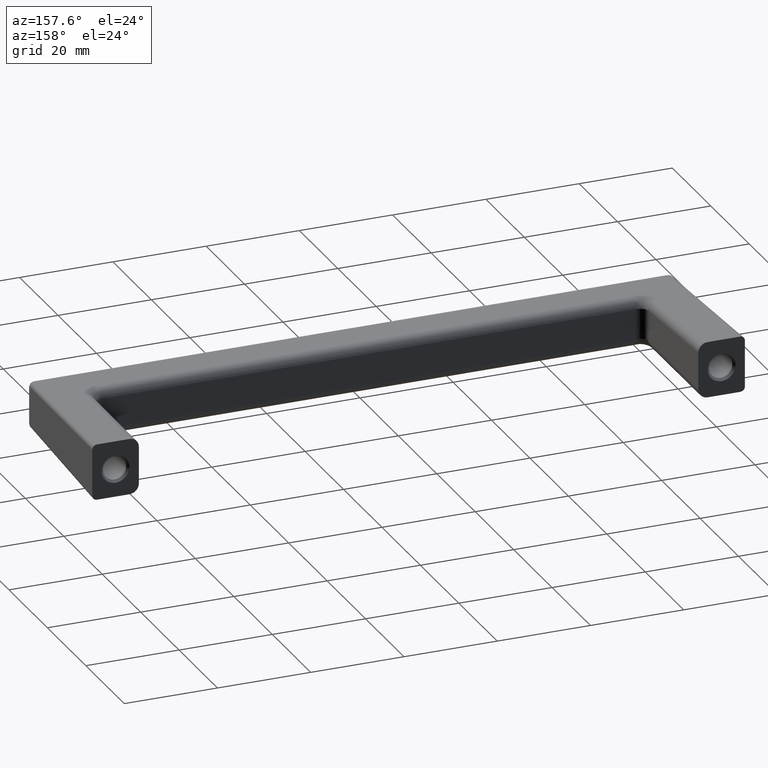
[diagram: clean part render]
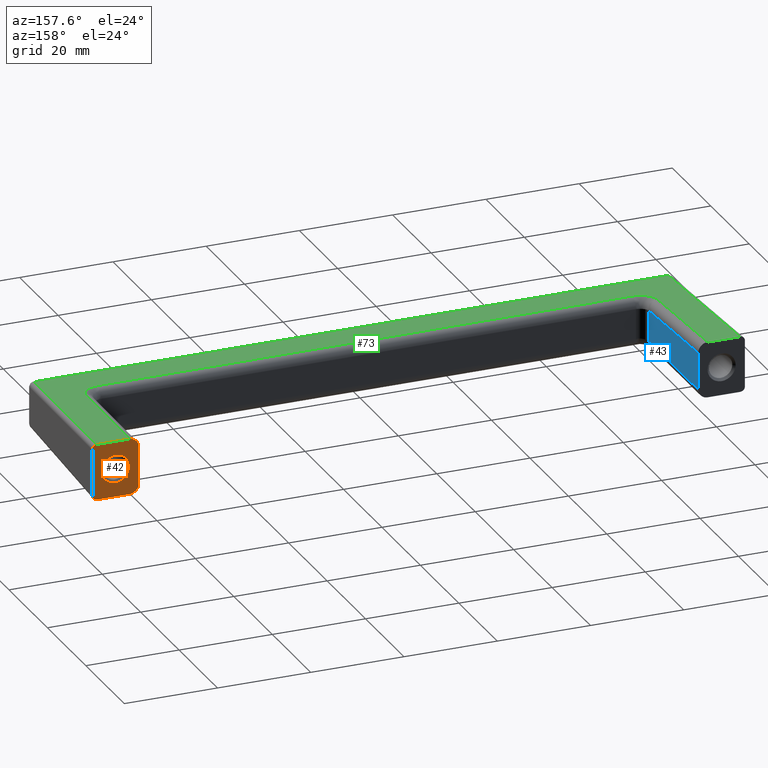
[diagram: same view with three faces highlighted in distinct colors, each labeled with its STEP entity id]
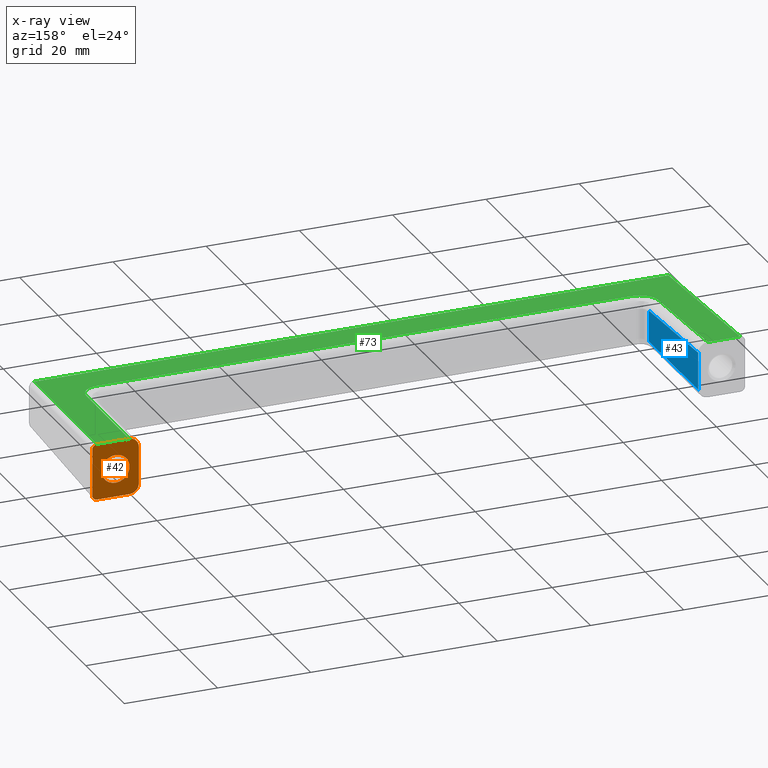
[diagram: x-ray of the same camera — body ghosted, the three highlighted faces saturated]
A machine part, auxiliary view with three faces highlighted in distinct colors.
The next image is the same camera in x-ray (body ghosted, the three faces saturated) — at least one of them is partly hidden behind the body in this view.
Their STEP definitions:

[orange] entity #42 — the highlighted planar face has unit normal (0, -1, 0).
#42=ADVANCED_FACE('',(#105,#106),#104,.F.);
#104=PLANE('',#539);
#105=FACE_OUTER_BOUND('',#540,.T.);
#106=FACE_BOUND('',#541,.T.);
#536=CARTESIAN_POINT('',(5.89995188436E+001,1.05517187119E+001,2.82947860724E+000));
#537=DIRECTION('',(0.00000000000E+000,-1.00000000000E+000,0.00000000000E+000));
#538=DIRECTION('',(1.00000000000E+000,0.00000000000E+000,0.00000000000E+000));
#539=AXIS2_PLACEMENT_3D('',#536,#537,#538);
#540=EDGE_LOOP('',(#989,#990,#991,#992,#993,#994,#995,#996));
#541=EDGE_LOOP('',(#997,#998,#999,#1000,#1001,#1002,#1003,#1004));
#989=ORIENTED_EDGE('',*,*,#1269,.T.);
#990=ORIENTED_EDGE('',*,*,#1270,.T.);
#991=ORIENTED_EDGE('',*,*,#1271,.T.);
#992=ORIENTED_EDGE('',*,*,#1272,.T.);
#993=ORIENTED_EDGE('',*,*,#1273,.F.);
#994=ORIENTED_EDGE('',*,*,#1274,.T.);
#995=ORIENTED_EDGE('',*,*,#1275,.F.);
#996=ORIENTED_EDGE('',*,*,#1276,.T.);
#997=ORIENTED_EDGE('',*,*,#1277,.T.);
#998=ORIENTED_EDGE('',*,*,#1278,.T.);
#999=ORIENTED_EDGE('',*,*,#1279,.T.);
#1000=ORIENTED_EDGE('',*,*,#1280,.T.);
#1001=ORIENTED_EDGE('',*,*,#1281,.T.);
#1002=ORIENTED_EDGE('',*,*,#1282,.T.);
#1003=ORIENTED_EDGE('',*,*,#1283,.T.);
#1004=ORIENTED_EDGE('',*,*,#1284,.T.);
#1269=EDGE_CURVE('',#1505,#1506,#1507,.T.);
#1270=EDGE_CURVE('',#1506,#1513,#1514,.T.);
#1271=EDGE_CURVE('',#1513,#1520,#1521,.T.);
#1272=EDGE_CURVE('',#1520,#1527,#1528,.T.);
#1273=EDGE_CURVE('',#1534,#1527,#1535,.T.);
#1274=EDGE_CURVE('',#1534,#1541,#1542,.T.);
#1275=EDGE_CURVE('',#1548,#1541,#1549,.T.);
#1276=EDGE_CURVE('',#1548,#1505,#1555,.T.);
#1277=EDGE_CURVE('',#1561,#1562,#1563,.T.);
#1278=EDGE_CURVE('',#1562,#1569,#1570,.T.);
#1279=EDGE_CURVE('',#1569,#1576,#1577,.T.);
#1280=EDGE_CURVE('',#1576,#1583,#1584,.T.);
#1281=EDGE_CURVE('',#1583,#1590,#1591,.T.);
#1282=EDGE_CURVE('',#1590,#1597,#1598,.T.);
#1283=EDGE_CURVE('',#1597,#1604,#1605,.T.);
#1284=EDGE_CURVE('',#1604,#1561,#1611,.T.);
#1505=VERTEX_POINT('',#2436);
#1506=VERTEX_POINT('',#2437);
#1507=LINE('',#2438,#2439);
#1513=VERTEX_POINT('',#2441);
#1514=(BOUNDED_CURVE() B_SPLINE_CURVE(3,(#2442,#2443,#2444,#2445,#2446,#2447,#2448),.UNSPECIFIED.,.F.,.F.) B_SPLINE_CURVE_WITH_KNOTS((4,1,1,1,4),(-6.09930217000E-007,3.92570674914E-001,7.85139384747E-001,1.17770814500E+000,1.57027759217E+000),.UNSPECIFIED.) CURVE() GEOMETRIC_REPRESENTATION_ITEM() RATIONAL_B_SPLINE_CURVE((1.00000000000E+000,1.00000000000E+000,1.00000000000E+000,1.00000000000E+000,1.00000000000E+000,1.00000000000E+000,1.00000000000E+000)) REPRESENTATION_ITEM('') );
#1520=VERTEX_POINT('',#2449);
#1521=LINE('',#2450,#2451);
#1527=VERTEX_POINT('',#2453);
#1528=(BOUNDED_CURVE() B_SPLINE_CURVE(3,(#2454,#2455,#2456,#2457,#2458,#2459,#2460,#2461,#2462),.UNSPECIFIED.,.F.,.F.) B_SPLINE_CURVE_WITH_KNOTS((4,1,1,1,1,1,4),(3.32221141000E-007,7.37148701921E-001,1.22859670985E+000,1.62168181965E+000,2.16229398401E+000,2.55546566565E+000,3.14517297972E+000),.UNSPECIFIED.) CURVE() GEOMETRIC_REPRESENTATION_ITEM() RATIONAL_B_SPLINE_CURVE((1.00000000000E+000,1.00000000000E+000,1.00000000000E+000,1.00000000000E+000,1.00000000000E+000,1.00000000000E+000,1.00000000000E+000,1.00000000000E+000,1.00000000000E+000)) REPRESENTATION_ITEM('') );
#1534=VERTEX_POINT('',#2463);
#1535=LINE('',#2464,#2465);
#1541=VERTEX_POINT('',#2467);
#1542=(BOUNDED_CURVE() B_SPLINE_CURVE(3,(#2468,#2469,#2470,#2471,#2472,#2473,#2474,#2475),.UNSPECIFIED.,.F.,.F.) B_SPLINE_CURVE_WITH_KNOTS((4,1,1,1,1,4),(3.32218970000E-007,5.40557804365E-001,1.22859670985E+000,1.62168181965E+000,2.30973354864E+000,3.14517297972E+000),.UNSPECIFIED.) CURVE() GEOMETRIC_REPRESENTATION_ITEM() RATIONAL_B_SPLINE_CURVE((1.00000000000E+000,1.00000000000E+000,1.00000000000E+000,1.00000000000E+000,1.00000000000E+000,1.00000000000E+000,1.00000000000E+000,1.00000000000E+000)) REPRESENTATION_ITEM('') );
#1548=VERTEX_POINT('',#2476);
#1549=LINE('',#2477,#2478);
#1555=(BOUNDED_CURVE() B_SPLINE_CURVE(3,(#2480,#2481,#2482,#2483,#2484,#2485,#2486),.UNSPECIFIED.,.F.,.F.) B_SPLINE_CURVE_WITH_KNOTS((4,1,1,1,4),(-6.09933209000E-007,3.92570674911E-001,7.85139384746E-001,1.17770814500E+000,1.57027759217E+000),.UNSPECIFIED.) CURVE() GEOMETRIC_REPRESENTATION_ITEM() RATIONAL_B_SPLINE_CURVE((1.00000000000E+000,1.00000000000E+000,1.00000000000E+000,1.00000000000E+000,1.00000000000E+000,1.00000000000E+000,1.00000000000E+000)) REPRESENTATION_ITEM('') );
#1561=VERTEX_POINT('',#2487);
#1562=VERTEX_POINT('',#2488);
#1563=(BOUNDED_CURVE() B_SPLINE_CURVE(3,(#2489,#2490,#2491,#2492,#2493,#2494,#2495),.UNSPECIFIED.,.F.,.F.) B_SPLINE_CURVE_WITH_KNOTS((4,1,1,1,4),(2.11232672000E-007,7.36316468783E-001,1.47267359182E+000,2.13539998469E+000,2.33007462109E+000),.UNSPECIFIED.) CURVE() GEOMETRIC_REPRESENTATION_ITEM() RATIONAL_B_SPLINE_CURVE((1.00000000000E+000,1.00000000000E+000,1.00000000000E+000,1.00000000000E+000,1.00000000000E+000,1.00000000000E+000,1.00000000000E+000)) REPRESENTATION_ITEM('') );
#1569=VERTEX_POINT('',#2496);
#1570=(BOUNDED_CURVE() B_SPLINE_CURVE(3,(#2497,#2498,#2499,#2500,#2501,#2502),.UNSPECIFIED.,.F.,.F.) B_SPLINE_CURVE_WITH_KNOTS((4,1,1,4),(2.33007462109E+000,3.16619763512E+000,3.90256142560E+000,4.71250592745E+000),.UNSPECIFIED.) CURVE() GEOMETRIC_REPRESENTATION_ITEM() RATIONAL_B_SPLINE_CURVE((1.00000000000E+000,1.00000000000E+000,1.00000000000E+000,1.00000000000E+000,1.00000000000E+000,1.00000000000E+000)) REPRESENTATION_ITEM('') );
#1576=VERTEX_POINT('',#2503);
#1577=(BOUNDED_CURVE() B_SPLINE_CURVE(3,(#2504,#2505,#2506,#2507,#2508,#2509),.UNSPECIFIED.,.F.,.F.) B_SPLINE_CURVE_WITH_KNOTS((4,1,1,4),(7.09329020000E-008,8.00964906271E-001,1.38345998376E+000,2.33007139115E+000),.UNSPECIFIED.) CURVE() GEOMETRIC_REPRESENTATION_ITEM() RATIONAL_B_SPLINE_CURVE((1.00000000000E+000,1.00000000000E+000,1.00000000000E+000,1.00000000000E+000,1.00000000000E+000,1.00000000000E+000)) REPRESENTATION_ITEM('') );
#1583=VERTEX_POINT('',#2510);
#1584=(BOUNDED_CURVE() B_SPLINE_CURVE(3,(#2511,#2512,#2513,#2514,#2515),.UNSPECIFIED.,.F.,.F.) B_SPLINE_CURVE_WITH_KNOTS((4,1,4),(5.54426040000E-008,1.11677860938E+000,2.38243751891E+000),.UNSPECIFIED.) CURVE() GEOMETRIC_REPRESENTATION_ITEM() RATIONAL_B_SPLINE_CURVE((1.00000000000E+000,1.00000000000E+000,1.00000000000E+000,1.00000000000E+000,1.00000000000E+000)) REPRESENTATION_ITEM('') );
#1590=VERTEX_POINT('',#2516);
#1591=(BOUNDED_CURVE() B_SPLINE_CURVE(3,(#2517,#2518,#2519,#2520,#2521,#2522,#2523),.UNSPECIFIED.,.F.,.F.) B_SPLINE_CURVE_WITH_KNOTS((4,1,1,1,4),(2.11220256000E-007,9.57219347595E-001,1.61994639478E+000,2.13539998468E+000,2.32717272593E+000),.UNSPECIFIED.) CURVE() GEOMETRIC_REPRESENTATION_ITEM() RATIONAL_B_SPLINE_CURVE((1.00000000000E+000,1.00000000000E+000,1.00000000000E+000,1.00000000000E+000,1.00000000000E+000,1.00000000000E+000,1.00000000000E+000)) REPRESENTATION_ITEM('') );
#1597=VERTEX_POINT('',#2524);
#1598=(BOUNDED_CURVE() B_SPLINE_CURVE(3,(#2525,#2526,#2527,#2528,#2529,#2530,#2531),.UNSPECIFIED.,.F.,.F.) B_SPLINE_CURVE_WITH_KNOTS((4,1,1,1,4),(2.32717272593E+000,2.72438323037E+000,3.31348062779E+000,4.04983560475E+000,4.71250592745E+000),.UNSPECIFIED.) CURVE() GEOMETRIC_REPRESENTATION_ITEM() RATIONAL_B_SPLINE_CURVE((1.00000000000E+000,1.00000000000E+000,1.00000000000E+000,1.00000000000E+000,1.00000000000E+000,1.00000000000E+000,1.00000000000E+000)) REPRESENTATION_ITEM('') );
#1604=VERTEX_POINT('',#2532);
#1605=(BOUNDED_CURVE() B_SPLINE_CURVE(3,(#2533,#2534,#2535,#2536,#2537,#2538),.UNSPECIFIED.,.F.,.F.) B_SPLINE_CURVE_WITH_KNOTS((4,1,1,4),(7.09337610000E-008,8.00964906271E-001,1.38345998376E+000,2.33007139115E+000),.UNSPECIFIED.) CURVE() GEOMETRIC_REPRESENTATION_ITEM() RATIONAL_B_SPLINE_CURVE((1.00000000000E+000,1.00000000000E+000,1.00000000000E+000,1.00000000000E+000,1.00000000000E+000,1.00000000000E+000)) REPRESENTATION_ITEM('') );
#1611=(BOUNDED_CURVE() B_SPLINE_CURVE(3,(#2539,#2540,#2541,#2542,#2543),.UNSPECIFIED.,.F.,.F.) B_SPLINE_CURVE_WITH_KNOTS((4,1,4),(5.54440920000E-008,1.11677860938E+000,2.38243751891E+000),.UNSPECIFIED.) CURVE() GEOMETRIC_REPRESENTATION_ITEM() RATIONAL_B_SPLINE_CURVE((1.00000000000E+000,1.00000000000E+000,1.00000000000E+000,1.00000000000E+000,1.00000000000E+000)) REPRESENTATION_ITEM('') );
#2436=CARTESIAN_POINT('',(6.99996000000E+001,1.05517187119E+001,1.50300827601E+001));
#2437=CARTESIAN_POINT('',(6.99996000000E+001,1.05517187119E+001,5.02931207635E+000));
#2438=CARTESIAN_POINT('',(6.99996000000E+001,1.05517187119E+001,1.50300827601E+001));
#2439=VECTOR('',#2440,1.00007706837E+001);
#2440=DIRECTION('',(0.00000000000E+000,0.00000000000E+000,-1.00000000000E+000));
#2441=CARTESIAN_POINT('',(6.89999855793E+001,1.05517187119E+001,4.02969741821E+000));
#2442=CARTESIAN_POINT('',(6.99996000000E+001,1.05517187119E+001,5.02931207635E+000));
#2443=CARTESIAN_POINT('',(6.99997129753E+001,1.05517187119E+001,4.89844355180E+000));
#2444=CARTESIAN_POINT('',(6.99474267659E+001,1.05517187119E+001,4.63688835954E+000));
#2445=CARTESIAN_POINT('',(6.97251968754E+001,1.05517187119E+001,4.30407159003E+000));
#2446=CARTESIAN_POINT('',(6.93924370851E+001,1.05517187119E+001,4.08183804006E+000));
#2447=CARTESIAN_POINT('',(6.91308446596E+001,1.05517187119E+001,4.02954265668E+000));
#2448=CARTESIAN_POINT('',(6.89999855793E+001,1.05517187119E+001,4.02969741821E+000));
#2449=CARTESIAN_POINT('',(6.20019173944E+001,1.05517187119E+001,4.02969741821E+000));
#2450=CARTESIAN_POINT('',(6.89999855793E+001,1.05517187119E+001,4.02969741821E+000));
#2451=VECTOR('',#2452,6.99806818486E+000);
#2452=DIRECTION('',(-1.00000000000E+000,0.00000000000E+000,0.00000000000E+000));
#2453=CARTESIAN_POINT('',(5.99996000000E+001,1.05517187119E+001,6.03201314921E+000));
#2454=CARTESIAN_POINT('',(6.20019173944E+001,1.05517187119E+001,4.02969741821E+000));
#2455=CARTESIAN_POINT('',(6.17561760695E+001,1.05517187119E+001,4.02952241134E+000));
#2456=CARTESIAN_POINT('',(6.13468257348E+001,1.05517187119E+001,4.10615473581E+000));
#2457=CARTESIAN_POINT('',(6.08665480796E+001,1.05517187119E+001,4.36298219584E+000));
#2458=CARTESIAN_POINT('',(6.05050815326E+001,1.05517187119E+001,4.67475023705E+000));
#2459=CARTESIAN_POINT('',(6.02436211592E+001,1.05517187119E+001,5.03644846981E+000));
#2460=CARTESIAN_POINT('',(6.00483334974E+001,1.05517187119E+001,5.50788559068E+000));
#2461=CARTESIAN_POINT('',(5.99995402580E+001,1.05517187119E+001,5.83543931523E+000));
#2462=CARTESIAN_POINT('',(5.99996000000E+001,1.05517187119E+001,6.03201314921E+000));
#2463=CARTESIAN_POINT('',(5.99996000000E+001,1.05517187119E+001,1.40273816872E+001));
#2464=CARTESIAN_POINT('',(5.99996000000E+001,1.05517187119E+001,1.40273816872E+001));
#2465=VECTOR('',#2466,7.99536853801E+000);
#2466=DIRECTION('',(0.00000000000E+000,0.00000000000E+000,-1.00000000000E+000));
#2467=CARTESIAN_POINT('',(6.20019173944E+001,1.05517187119E+001,1.60296974182E+001));
#2468=CARTESIAN_POINT('',(5.99996000000E+001,1.05517187119E+001,1.40273816872E+001));
#2469=CARTESIAN_POINT('',(5.99995905549E+001,1.05517187119E+001,1.42075571155E+001));
#2470=CARTESIAN_POINT('',(6.00552424768E+001,1.05517187119E+001,1.46171087042E+001));
#2471=CARTESIAN_POINT('',(6.02897727507E+001,1.05517187119E+001,1.51129154749E+001));
#2472=CARTESIAN_POINT('',(6.06768782854E+001,1.05517187119E+001,1.55616644060E+001));
#2473=CARTESIAN_POINT('',(6.12158160931E+001,1.05517187119E+001,1.59219508960E+001));
#2474=CARTESIAN_POINT('',(6.17234201825E+001,1.05517187119E+001,1.60299604524E+001));
#2475=CARTESIAN_POINT('',(6.20019173944E+001,1.05517187119E+001,1.60296974182E+001));
#2476=CARTESIAN_POINT('',(6.89999855793E+001,1.05517187119E+001,1.60296974182E+001));
#2477=CARTESIAN_POINT('',(6.89999855793E+001,1.05517187119E+001,1.60296974182E+001));
#2478=VECTOR('',#2479,6.99806818486E+000);
#2479=DIRECTION('',(-1.00000000000E+000,0.00000000000E+000,0.00000000000E+000));
#2480=CARTESIAN_POINT('',(6.89999855793E+001,1.05517187119E+001,1.60296974182E+001));
#2481=CARTESIAN_POINT('',(6.91308495532E+001,1.05517187119E+001,1.60298087602E+001));
#2482=CARTESIAN_POINT('',(6.93924125854E+001,1.05517187119E+001,1.59775239801E+001));
#2483=CARTESIAN_POINT('',(6.97252247403E+001,1.05517187119E+001,1.57552941622E+001));
#2484=CARTESIAN_POINT('',(6.99474596819E+001,1.05517187119E+001,1.54225337767E+001));
#2485=CARTESIAN_POINT('',(6.99997544017E+001,1.05517187119E+001,1.51609431333E+001));
#2486=CARTESIAN_POINT('',(6.99996000000E+001,1.05517187119E+001,1.50300827601E+001));
#2487=CARTESIAN_POINT('',(6.49999976837E+001,1.05517187119E+001,1.30296974182E+001));
#2488=CARTESIAN_POINT('',(6.28972859825E+001,1.05517187119E+001,1.21694347546E+001));
#2489=CARTESIAN_POINT('',(6.49999976837E+001,1.05517187119E+001,1.30296974182E+001));
#2490=CARTESIAN_POINT('',(6.47545608494E+001,1.05517187119E+001,1.30297509013E+001));
#2491=CARTESIAN_POINT('',(6.42637102029E+001,1.05517187119E+001,1.29691345916E+001));
#2492=CARTESIAN_POINT('',(6.35946139051E+001,1.05517187119E+001,1.27110441548E+001));
#2493=CARTESIAN_POINT('',(6.31537773479E+001,1.05517187119E+001,1.24087344284E+001));
#2494=CARTESIAN_POINT('',(6.29435449394E+001,1.05517187119E+001,1.22149376625E+001));
#2495=CARTESIAN_POINT('',(6.28972859825E+001,1.05517187119E+001,1.21694347546E+001));
#2496=CARTESIAN_POINT('',(6.20000000000E+001,1.05517187119E+001,1.00296974182E+001));
#2497=CARTESIAN_POINT('',(6.28972859825E+001,1.05517187119E+001,1.21694347546E+001));
#2498=CARTESIAN_POINT('',(6.26986048437E+001,1.05517187119E+001,1.19740008283E+001));
#2499=CARTESIAN_POINT('',(6.23761101672E+001,1.05517187119E+001,1.15543781045E+001));
#2500=CARTESIAN_POINT('',(6.20700619705E+001,1.05517187119E+001,1.08150442507E+001));
#2501=CARTESIAN_POINT('',(6.19999090412E+001,1.05517187119E+001,1.02996807568E+001));
#2502=CARTESIAN_POINT('',(6.20000000000E+001,1.05517187119E+001,1.00296974182E+001));
#2503=CARTESIAN_POINT('',(6.28602492720E+001,1.05517184224E+001,7.92697023405E+000));
#2504=CARTESIAN_POINT('',(6.20000000000E+001,1.05517187119E+001,1.00296974182E+001));
#2505=CARTESIAN_POINT('',(6.19999053520E+001,1.05517186751E+001,9.76270541809E+000));
#2506=CARTESIAN_POINT('',(6.20619973549E+001,1.05517186116E+001,9.30161904147E+000));
#2507=CARTESIAN_POINT('',(6.23398052949E+001,1.05517185112E+001,8.57238701631E+000));
#2508=CARTESIAN_POINT('',(6.26389677928E+001,1.05517184533E+001,8.15192983474E+000));
#2509=CARTESIAN_POINT('',(6.28602492720E+001,1.05517184224E+001,7.92697023405E+000));
#2510=CARTESIAN_POINT('',(6.50000023163E+001,1.05517187119E+001,7.02969741821E+000));
#2511=CARTESIAN_POINT('',(6.28602492720E+001,1.05517184224E+001,7.92697023405E+000));
#2512=CARTESIAN_POINT('',(6.31209534537E+001,1.05517184576E+001,7.66118862177E+000));
#2513=CARTESIAN_POINT('',(6.37844706694E+001,1.05517185474E+001,7.20025462518E+000));
#2514=CARTESIAN_POINT('',(6.45780269593E+001,1.05517186548E+001,7.02910780989E+000));
#2515=CARTESIAN_POINT('',(6.50000023163E+001,1.05517187119E+001,7.02969741821E+000));
#2516=CARTESIAN_POINT('',(6.71006531564E+001,1.05517187119E+001,7.88791979718E+000));
#2517=CARTESIAN_POINT('',(6.50000023163E+001,1.05517187119E+001,7.02969741821E+000));
#2518=CARTESIAN_POINT('',(6.53190908096E+001,1.05517187119E+001,7.02950892746E+000));
#2519=CARTESIAN_POINT('',(6.58589407004E+001,1.05517187119E+001,7.11669479987E+000));
#2520=CARTESIAN_POINT('',(6.65100133643E+001,1.05517187119E+001,7.41495229370E+000));
#2521=CARTESIAN_POINT('',(6.68814615702E+001,1.05517187119E+001,7.68345118745E+000));
#2522=CARTESIAN_POINT('',(6.70550192862E+001,1.05517187119E+001,7.84315705333E+000));
#2523=CARTESIAN_POINT('',(6.71006531564E+001,1.05517187119E+001,7.88791979718E+000));
#2524=CARTESIAN_POINT('',(6.80000000000E+001,1.05517187119E+001,1.00296974182E+001));
#2525=CARTESIAN_POINT('',(6.71006531564E+001,1.05517187119E+001,7.88791979718E+000));
#2526=CARTESIAN_POINT('',(6.71951725989E+001,1.05517187119E+001,7.98063491377E+000));
#2527=CARTESIAN_POINT('',(6.74146567766E+001,1.05517187119E+001,8.22637145472E+000));
#2528=CARTESIAN_POINT('',(6.77233834903E+001,1.05517187119E+001,8.71381997494E+000));
#2529=CARTESIAN_POINT('',(6.79482849056E+001,1.05517187119E+001,9.34248834079E+000));
#2530=CARTESIAN_POINT('',(6.80000353346E+001,1.05517187119E+001,9.80881222606E+000));
#2531=CARTESIAN_POINT('',(6.80000000000E+001,1.05517187119E+001,1.00296974182E+001));
#2532=CARTESIAN_POINT('',(6.71397507280E+001,1.05517184224E+001,1.21324246024E+001));
#2533=CARTESIAN_POINT('',(6.80000000000E+001,1.05517187119E+001,1.00296974182E+001));
#2534=CARTESIAN_POINT('',(6.80000776687E+001,1.05517186751E+001,1.02966862595E+001));
#2535=CARTESIAN_POINT('',(6.79380245953E+001,1.05517186116E+001,1.07577824224E+001));
#2536=CARTESIAN_POINT('',(6.76601637265E+001,1.05517185112E+001,1.14869905265E+001));
#2537=CARTESIAN_POINT('',(6.73610580720E+001,1.05517184533E+001,1.19074830404E+001));
#2538=CARTESIAN_POINT('',(6.71397507280E+001,1.05517184224E+001,1.21324246024E+001));
#2539=CARTESIAN_POINT('',(6.71397507280E+001,1.05517184224E+001,1.21324246024E+001));
#2540=CARTESIAN_POINT('',(6.68790455447E+001,1.05517184576E+001,1.23982093644E+001));
#2541=CARTESIAN_POINT('',(6.62155301176E+001,1.05517185474E+001,1.28591347904E+001));
#2542=CARTESIAN_POINT('',(6.54219731587E+001,1.05517186548E+001,1.30302904308E+001));
#2543=CARTESIAN_POINT('',(6.49999976837E+001,1.05517187119E+001,1.30296974182E+001));

[blue] entity #43 — the highlighted planar face has unit normal (-0.9996, -0.0278, 0).
#43=ADVANCED_FACE('',(#116),#115,.F.);
#115=PLANE('',#545);
#116=FACE_OUTER_BOUND('',#546,.T.);
#542=CARTESIAN_POINT('',(-6.00668188674E+001,1.29572719546E+001,5.23247424650E+000));
#543=DIRECTION('',(-9.99614444367E-001,-2.77662135278E-002,0.00000000000E+000));
#544=DIRECTION('',(2.77662135278E-002,-9.99614444367E-001,0.00000000000E+000));
#545=AXIS2_PLACEMENT_3D('',#542,#543,#544);
#546=EDGE_LOOP('',(#1005,#1006,#1007,#1008));
#1005=ORIENTED_EDGE('',*,*,#1285,.F.);
#1006=ORIENTED_EDGE('',*,*,#1286,.T.);
#1007=ORIENTED_EDGE('',*,*,#1287,.T.);
#1008=ORIENTED_EDGE('',*,*,#1288,.T.);
#1285=EDGE_CURVE('',#1617,#1618,#1619,.T.);
#1286=EDGE_CURVE('',#1617,#1625,#1626,.T.);
#1287=EDGE_CURVE('',#1625,#1632,#1633,.T.);
#1288=EDGE_CURVE('',#1632,#1618,#1639,.T.);
#1617=VERTEX_POINT('',#2544);
#1618=VERTEX_POINT('',#2545);
#1619=LINE('',#2546,#2547);
#1625=VERTEX_POINT('',#2549);
#1626=LINE('',#2550,#2551);
#1632=VERTEX_POINT('',#2553);
#1633=LINE('',#2554,#2555);
#1639=LINE('',#2557,#2558);
#2544=CARTESIAN_POINT('',(-6.00000000000E+001,1.05517187119E+001,1.40273833946E+001));
#2545=CARTESIAN_POINT('',(-6.00000000000E+001,1.05517187119E+001,6.03201144178E+000));
#2546=CARTESIAN_POINT('',(-6.00000000000E+001,1.05517187119E+001,1.40273833946E+001));
#2547=VECTOR('',#2548,7.99537195286E+000);
#2548=DIRECTION('',(0.00000000000E+000,0.00000000000E+000,-1.00000000000E+000));
#2549=CARTESIAN_POINT('',(-5.93318113262E+001,-1.35038137152E+001,1.33591741606E+001));
#2550=CARTESIAN_POINT('',(-6.00000000000E+001,1.05517187119E+001,1.40273833946E+001));
#2551=VECTOR('',#2552,2.40740860685E+001);
#2552=DIRECTION('',(2.77555156985E-002,-9.99229310663E-001,-2.77563697406E-002));
#2553=CARTESIAN_POINT('',(-5.93318113262E+001,-1.35038137152E+001,6.70022067587E+000));
#2554=CARTESIAN_POINT('',(-5.93318113262E+001,-1.35038137152E+001,1.33591741606E+001));
#2555=VECTOR('',#2556,6.65895348469E+000);
#2556=DIRECTION('',(0.00000000000E+000,0.00000000000E+000,-1.00000000000E+000));
#2557=CARTESIAN_POINT('',(-5.93318113262E+001,-1.35038137152E+001,6.70022067587E+000));
#2558=VECTOR('',#2559,2.40740860685E+001);
#2559=DIRECTION('',(-2.77555156985E-002,9.99229310663E-001,-2.77563697406E-002));

[green] entity #73 — the highlighted planar face has unit normal (0, 0.0278, -0.9996).
#73=ADVANCED_FACE('',(#416),#415,.F.);
#415=PLANE('',#896);
#416=FACE_OUTER_BOUND('',#897,.T.);
#893=CARTESIAN_POINT('',(-7.90003855793E+001,-2.79788250621E+001,1.49594045356E+001));
#894=DIRECTION('',(0.00000000000E+000,2.77670672404E-002,-9.99614420653E-001));
#895=DIRECTION('',(0.00000000000E+000,9.99614420653E-001,2.77670672404E-002));
#896=AXIS2_PLACEMENT_3D('',#893,#894,#895);
#897=EDGE_LOOP('',(#1127,#1128,#1129,#1130,#1131,#1132,#1133,#1134,#1135,#1136));
#1127=ORIENTED_EDGE('',*,*,#1316,.T.);
#1128=ORIENTED_EDGE('',*,*,#1314,.T.);
#1129=ORIENTED_EDGE('',*,*,#1275,.T.);
#1130=ORIENTED_EDGE('',*,*,#1327,.T.);
#1131=ORIENTED_EDGE('',*,*,#1329,.F.);
#1132=ORIENTED_EDGE('',*,*,#1333,.T.);
#1133=ORIENTED_EDGE('',*,*,#1338,.F.);
#1134=ORIENTED_EDGE('',*,*,#1345,.T.);
#1135=ORIENTED_EDGE('',*,*,#1351,.T.);
#1136=ORIENTED_EDGE('',*,*,#1323,.T.);
#1275=EDGE_CURVE('',#1548,#1541,#1549,.T.);
#1314=EDGE_CURVE('',#1785,#1548,#1811,.T.);
#1316=EDGE_CURVE('',#1817,#1785,#1824,.T.);
#1323=EDGE_CURVE('',#1869,#1817,#1870,.T.);
#1327=EDGE_CURVE('',#1541,#1889,#1896,.T.);
#1329=EDGE_CURVE('',#1902,#1889,#1909,.T.);
#1333=EDGE_CURVE('',#1902,#1927,#1934,.T.);
#1338=EDGE_CURVE('',#1960,#1927,#1967,.T.);
#1345=EDGE_CURVE('',#1960,#2004,#2011,.T.);
#1351=EDGE_CURVE('',#2004,#1869,#2049,.T.);
#1541=VERTEX_POINT('',#2467);
#1548=VERTEX_POINT('',#2476);
#1549=LINE('',#2477,#2478);
#1785=VERTEX_POINT('',#2657);
#1811=LINE('',#2687,#2688);
#1817=VERTEX_POINT('',#2690);
#1824=LINE('',#2698,#2699);
#1869=VERTEX_POINT('',#2734);
#1870=LINE('',#2735,#2736);
#1889=VERTEX_POINT('',#2749);
#1896=LINE('',#2758,#2759);
#1902=VERTEX_POINT('',#2761);
#1909=(BOUNDED_CURVE() B_SPLINE_CURVE(3,(#2770,#2771,#2772,#2773,#2774,#2775,#2776,#2777,#2778,#2779),.UNSPECIFIED.,.F.,.F.) B_SPLINE_CURVE_WITH_KNOTS((4,1,1,1,1,1,1,4),(1.00654335000E-007,7.71630739300E-001,1.63978489034E+000,2.60439396371E+000,3.56890727002E+000,4.14766874122E+000,5.11228475295E+000,6.17330229722E+000),.UNSPECIFIED.) CURVE() GEOMETRIC_REPRESENTATION_ITEM() RATIONAL_B_SPLINE_CURVE((1.00000000000E+000,1.00000000000E+000,1.00000000000E+000,1.00000000000E+000,1.00000000000E+000,1.00000000000E+000,1.00000000000E+000,1.00000000000E+000,1.00000000000E+000,1.00000000000E+000)) REPRESENTATION_ITEM('') );
#1927=VERTEX_POINT('',#2796);
#1934=LINE('',#2805,#2806);
#1960=VERTEX_POINT('',#2835);
#1967=(BOUNDED_CURVE() B_SPLINE_CURVE(3,(#2844,#2845,#2846,#2847,#2848,#2849,#2850,#2851,#2852,#2853),.UNSPECIFIED.,.F.,.F.) B_SPLINE_CURVE_WITH_KNOTS((4,1,1,1,1,1,1,4),(1.00663737000E-007,7.71646119307E-001,1.63981757708E+000,2.99026185973E+000,3.76189688965E+000,4.53360842529E+000,5.11238665954E+000,6.17342535279E+000),.UNSPECIFIED.) CURVE() GEOMETRIC_REPRESENTATION_ITEM() RATIONAL_B_SPLINE_CURVE((1.00000000000E+000,1.00000000000E+000,1.00000000000E+000,1.00000000000E+000,1.00000000000E+000,1.00000000000E+000,1.00000000000E+000,1.00000000000E+000,1.00000000000E+000,1.00000000000E+000)) REPRESENTATION_ITEM('') );
#2004=VERTEX_POINT('',#2885);
#2011=LINE('',#2893,#2894);
#2049=LINE('',#2931,#2932);
#2467=CARTESIAN_POINT('',(6.20019173944E+001,1.05517187119E+001,1.60296974182E+001));
#2476=CARTESIAN_POINT('',(6.89999855793E+001,1.05517187119E+001,1.60296974182E+001));
#2477=CARTESIAN_POINT('',(6.89999855793E+001,1.05517187119E+001,1.60296974182E+001));
#2478=VECTOR('',#2479,6.99806818486E+000);
#2479=DIRECTION('',(-1.00000000000E+000,0.00000000000E+000,0.00000000000E+000));
#2657=CARTESIAN_POINT('',(6.80272918640E+001,-2.44760483554E+001,1.50567038886E+001));
#2687=CARTESIAN_POINT('',(6.80272918640E+001,-2.44760483554E+001,1.50567038886E+001));
#2688=VECTOR('',#2689,3.50547759255E+001);
#2689=DIRECTION('',(2.77478229327E-002,9.99229524150E-001,2.77563756708E-002));
#2690=CARTESIAN_POINT('',(-6.80273920497E+001,-2.44760483554E+001,1.50567038886E+001));
#2698=CARTESIAN_POINT('',(-6.80273920497E+001,-2.44760483554E+001,1.50567038886E+001));
#2699=VECTOR('',#2700,1.36054683914E+002);
#2700=DIRECTION('',(1.00000000000E+000,0.00000000000E+000,0.00000000000E+000));
#2734=CARTESIAN_POINT('',(-6.90003855793E+001,1.05517187119E+001,1.60296974182E+001));
#2735=CARTESIAN_POINT('',(-6.90003855793E+001,1.05517187119E+001,1.60296974182E+001));
#2736=VECTOR('',#2737,3.50547842460E+001);
#2737=DIRECTION('',(2.77563690827E-002,-9.99229286976E-001,-2.77563690827E-002));
#2749=CARTESIAN_POINT('',(6.13298966271E+001,-1.36150032112E+001,1.53583995870E+001));
#2758=CARTESIAN_POINT('',(6.20019173944E+001,1.05517187119E+001,1.60296974182E+001));
#2759=VECTOR('',#2760,2.41853819733E+001);
#2760=DIRECTION('',(-2.77862374910E-002,-9.99228457491E-001,-2.77563460414E-002));
#2761=CARTESIAN_POINT('',(5.73314422663E+001,-1.75038154226E+001,1.52503770256E+001));
#2770=CARTESIAN_POINT('',(5.73314422663E+001,-1.75038154226E+001,1.52503770256E+001));
#2771=CARTESIAN_POINT('',(5.75886449585E+001,-1.75037967764E+001,1.52503775435E+001));
#2772=CARTESIAN_POINT('',(5.81352168100E+001,-1.74508087841E+001,1.52518494322E+001));
#2773=CARTESIAN_POINT('',(5.89690542671E+001,-1.71916233552E+001,1.52590490275E+001));
#2774=CARTESIAN_POINT('',(5.97791516170E+001,-1.67165334810E+001,1.52722459684E+001));
#2775=CARTESIAN_POINT('',(6.03826171838E+001,-1.61295454161E+001,1.52885511924E+001));
#2776=CARTESIAN_POINT('',(6.08601817119E+001,-1.54410112317E+001,1.53076771420E+001));
#2777=CARTESIAN_POINT('',(6.12114180244E+001,-1.46405472211E+001,1.53299122534E+001));
#2778=CARTESIAN_POINT('',(6.13202472053E+001,-1.39684091095E+001,1.53485827565E+001));
#2779=CARTESIAN_POINT('',(6.13298966271E+001,-1.36150032112E+001,1.53583995870E+001));
#2796=CARTESIAN_POINT('',(-5.73325824375E+001,-1.75038154226E+001,1.52503770256E+001));
#2805=CARTESIAN_POINT('',(5.73314422663E+001,-1.75038154226E+001,1.52503770256E+001));
#2806=VECTOR('',#2807,1.14664024704E+002);
#2807=DIRECTION('',(-1.00000000000E+000,0.00000000000E+000,0.00000000000E+000));
#2835=CARTESIAN_POINT('',(-6.13310402149E+001,-1.36148802767E+001,1.53584030019E+001));
#2844=CARTESIAN_POINT('',(-6.13310402149E+001,-1.36148802767E+001,1.53584030019E+001));
#2845=CARTESIAN_POINT('',(-6.13239790769E+001,-1.38718930382E+001,1.53512637585E+001));
#2846=CARTESIAN_POINT('',(-6.12559993671E+001,-1.44165871597E+001,1.53361333662E+001));
#2847=CARTESIAN_POINT('',(-6.09323582175E+001,-1.53652279934E+001,1.53097822320E+001));
#2848=CARTESIAN_POINT('',(-6.03564196973E+001,-1.61957112730E+001,1.52867132520E+001));
#2849=CARTESIAN_POINT('',(-5.96145849698E+001,-1.68191252688E+001,1.52693961965E+001));
#2850=CARTESIAN_POINT('',(-5.89931844412E+001,-1.71637460535E+001,1.52598233970E+001));
#2851=CARTESIAN_POINT('',(-5.82327780423E+001,-1.74306936463E+001,1.52524081860E+001));
#2852=CARTESIAN_POINT('',(-5.76862687751E+001,-1.75038715873E+001,1.52503754655E+001));
#2853=CARTESIAN_POINT('',(-5.73325824375E+001,-1.75038154226E+001,1.52503770256E+001));
#2885=CARTESIAN_POINT('',(-6.20023139761E+001,1.05517187119E+001,1.60296974182E+001));
#2893=CARTESIAN_POINT('',(-6.13310402149E+001,-1.36148802767E+001,1.53584030019E+001));
#2894=VECTOR('',#2895,2.41852382939E+001);
#2895=DIRECTION('',(-2.77555156985E-002,9.99229310663E-001,2.77563697406E-002));
#2931=CARTESIAN_POINT('',(-6.20023139761E+001,1.05517187119E+001,1.60296974182E+001));
#2932=VECTOR('',#2933,6.99807160328E+000);
#2933=DIRECTION('',(-1.00000000000E+000,0.00000000000E+000,0.00000000000E+000));